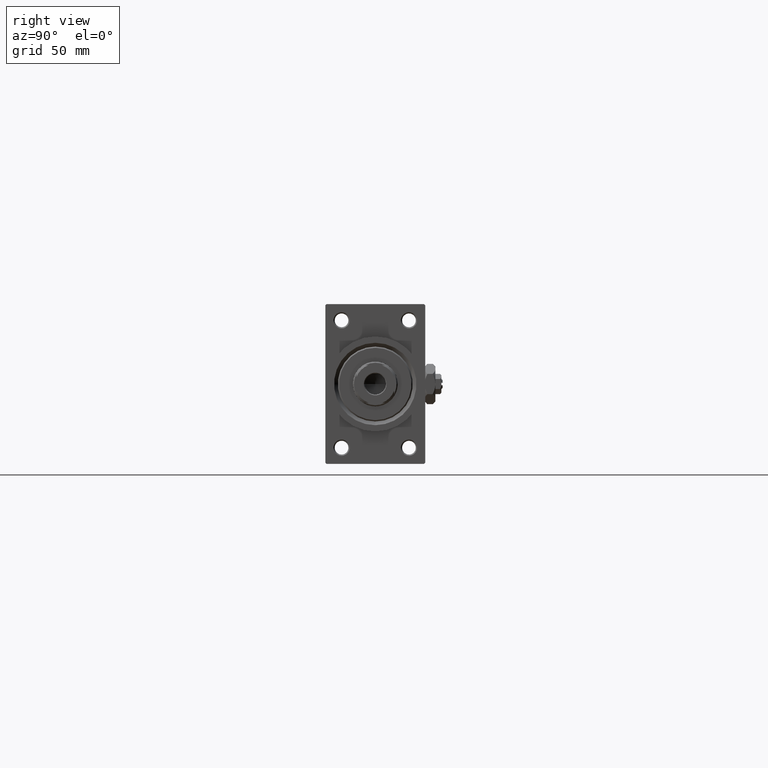
[diagram: clean part render]
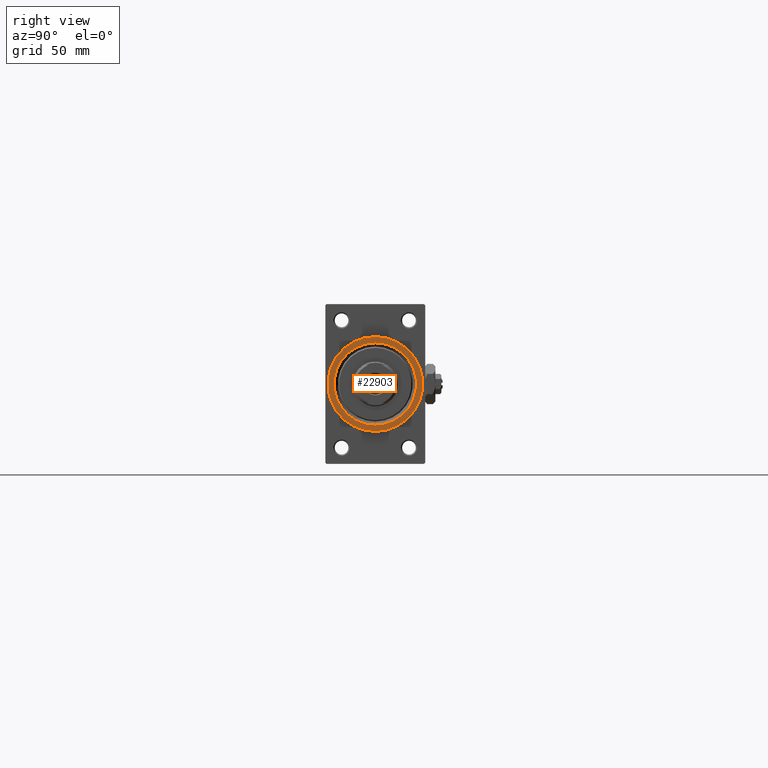
[diagram: same view with one face highlighted and labeled with its STEP entity id]
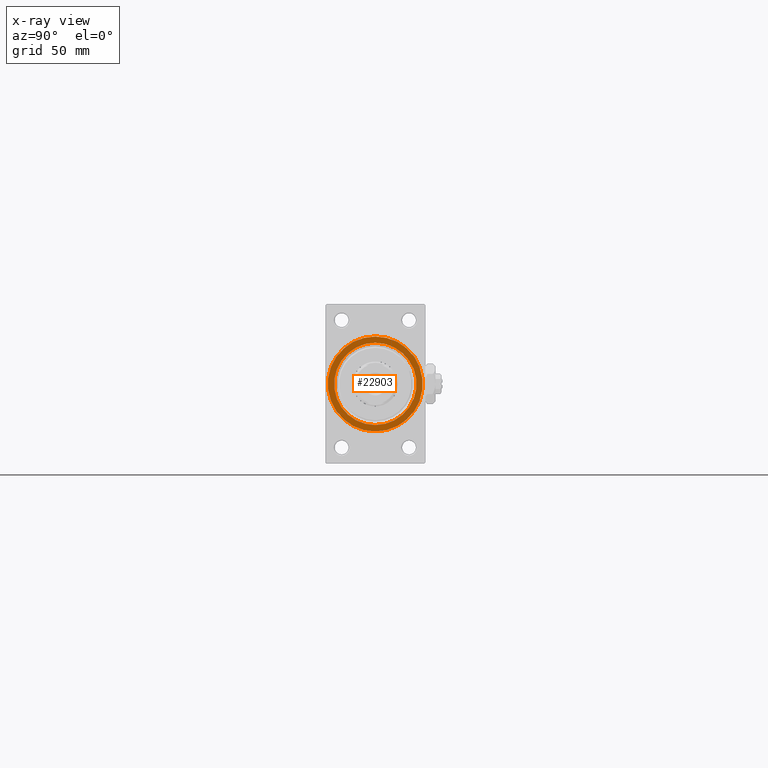
[diagram: x-ray of the same camera — body ghosted, the highlighted face saturated]
A machine part, right view. The second image highlights one B-rep face of the part: STEP entity #22903.
The next image is the same camera in x-ray: the body ghosted, the highlighted face saturated — about 0% of this face is hidden behind the body in this view.
In plain terms, the highlighted planar face has unit normal (1, 0, 0).
Its self-contained STEP definition (entity closure, byte-faithful):
#802 = AXIS2_PLACEMENT_3D ( 'NONE', #2373, #20247, #39591 ) ;
#1720 = VERTEX_POINT ( 'NONE', #3163 ) ;
#2320 = DIRECTION ( 'NONE',  ( 0.000000000000000000, 0.000000000000000000, -1.000000000000000000 ) ) ;
#2373 = CARTESIAN_POINT ( 'NONE',  ( 259.0000000000000000, 0.000000000000000000, 0.000000000000000000 ) ) ;
#2446 = FACE_BOUND ( 'NONE', #2924, .T. ) ;
#2924 = EDGE_LOOP ( 'NONE', ( #41949, #23364 ) ) ;
#3033 = EDGE_CURVE ( 'NONE', #24075, #9144, #29701, .T. ) ;
#3163 = CARTESIAN_POINT ( 'NONE',  ( 259.0000000000000000, 0.000000000000000000, 19.00000000000000000 ) ) ;
#6202 = ORIENTED_EDGE ( 'NONE', *, *, #32944, .T. ) ;
#6340 = EDGE_CURVE ( 'NONE', #10869, #1720, #24248, .T. ) ;
#6374 = CARTESIAN_POINT ( 'NONE',  ( 259.0000000000000000, 0.000000000000000000, -16.49999999999998579 ) ) ;
#9144 = VERTEX_POINT ( 'NONE', #20696 ) ;
#10869 = VERTEX_POINT ( 'NONE', #32181 ) ;
#13558 = DIRECTION ( 'NONE',  ( 0.000000000000000000, 0.000000000000000000, -1.000000000000000000 ) ) ;
#16831 = DIRECTION ( 'NONE',  ( 0.000000000000000000, 0.000000000000000000, -1.000000000000000000 ) ) ;
#16843 = PLANE ( 'NONE',  #21930 ) ;
#20247 = DIRECTION ( 'NONE',  ( -1.000000000000000000, -0.000000000000000000, -0.000000000000000000 ) ) ;
#20696 = CARTESIAN_POINT ( 'NONE',  ( 259.0000000000000000, 2.020667218593131128E-15, 16.49999999999998579 ) ) ;
#20755 = CARTESIAN_POINT ( 'NONE',  ( 259.0000000000000000, 0.000000000000000000, 0.000000000000000000 ) ) ;
#20793 = DIRECTION ( 'NONE',  ( 1.000000000000000000, 0.000000000000000000, 0.000000000000000000 ) ) ;
#21930 = AXIS2_PLACEMENT_3D ( 'NONE', #32721, #39907, #28254 ) ;
#22565 = AXIS2_PLACEMENT_3D ( 'NONE', #48209, #47478, #2320 ) ;
#22669 = AXIS2_PLACEMENT_3D ( 'NONE', #20755, #35892, #13558 ) ;
#22903 = ADVANCED_FACE ( 'NONE', ( #2446, #24761 ), #16843, .T. ) ;
#23364 = ORIENTED_EDGE ( 'NONE', *, *, #36581, .T. ) ;
#23369 = ORIENTED_EDGE ( 'NONE', *, *, #6340, .T. ) ;
#24075 = VERTEX_POINT ( 'NONE', #6374 ) ;
#24248 = CIRCLE ( 'NONE', #22669, 19.00000000000000000 ) ;
#24502 = CARTESIAN_POINT ( 'NONE',  ( 259.0000000000000000, 0.000000000000000000, 0.000000000000000000 ) ) ;
#24761 = FACE_OUTER_BOUND ( 'NONE', #38506, .T. ) ;
#26929 = CIRCLE ( 'NONE', #40426, 19.00000000000000000 ) ;
#28254 = DIRECTION ( 'NONE',  ( 0.000000000000000000, 0.000000000000000000, -1.000000000000000000 ) ) ;
#29701 = CIRCLE ( 'NONE', #22565, 16.49999999999998579 ) ;
#32181 = CARTESIAN_POINT ( 'NONE',  ( 259.0000000000000000, 2.326828918379970970E-15, -19.00000000000000000 ) ) ;
#32721 = CARTESIAN_POINT ( 'NONE',  ( 259.0000000000000000, 0.000000000000000000, 0.000000000000000000 ) ) ;
#32944 = EDGE_CURVE ( 'NONE', #1720, #10869, #26929, .T. ) ;
#35892 = DIRECTION ( 'NONE',  ( 1.000000000000000000, 0.000000000000000000, 0.000000000000000000 ) ) ;
#36581 = EDGE_CURVE ( 'NONE', #9144, #24075, #45977, .T. ) ;
#38506 = EDGE_LOOP ( 'NONE', ( #6202, #23369 ) ) ;
#39591 = DIRECTION ( 'NONE',  ( 0.000000000000000000, 0.000000000000000000, -1.000000000000000000 ) ) ;
#39907 = DIRECTION ( 'NONE',  ( 1.000000000000000000, 0.000000000000000000, 0.000000000000000000 ) ) ;
#40426 = AXIS2_PLACEMENT_3D ( 'NONE', #24502, #20793, #16831 ) ;
#41949 = ORIENTED_EDGE ( 'NONE', *, *, #3033, .T. ) ;
#45977 = CIRCLE ( 'NONE', #802, 16.49999999999998579 ) ;
#47478 = DIRECTION ( 'NONE',  ( -1.000000000000000000, -0.000000000000000000, -0.000000000000000000 ) ) ;
#48209 = CARTESIAN_POINT ( 'NONE',  ( 259.0000000000000000, 0.000000000000000000, 0.000000000000000000 ) ) ;